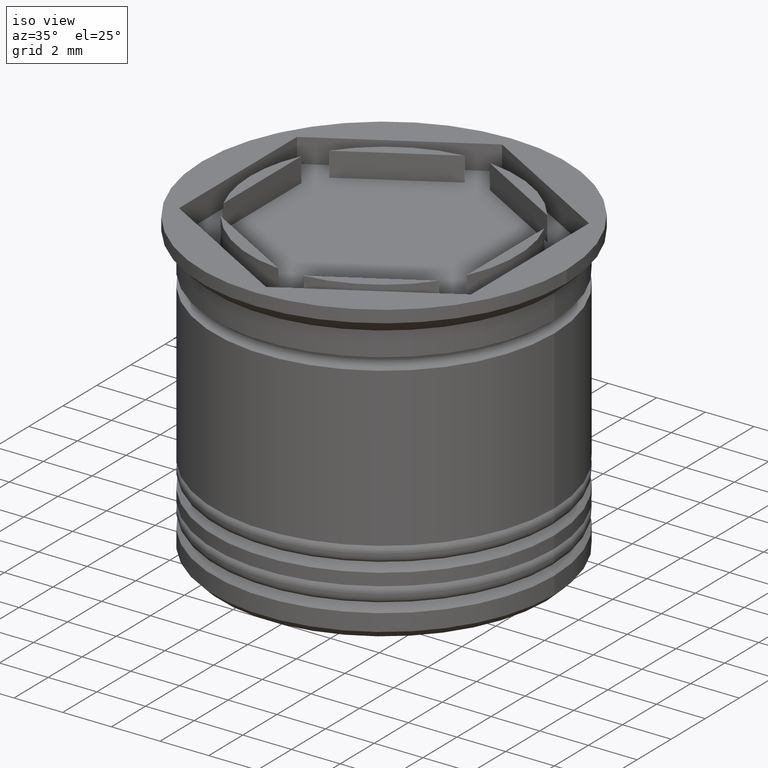
[diagram: clean part render]
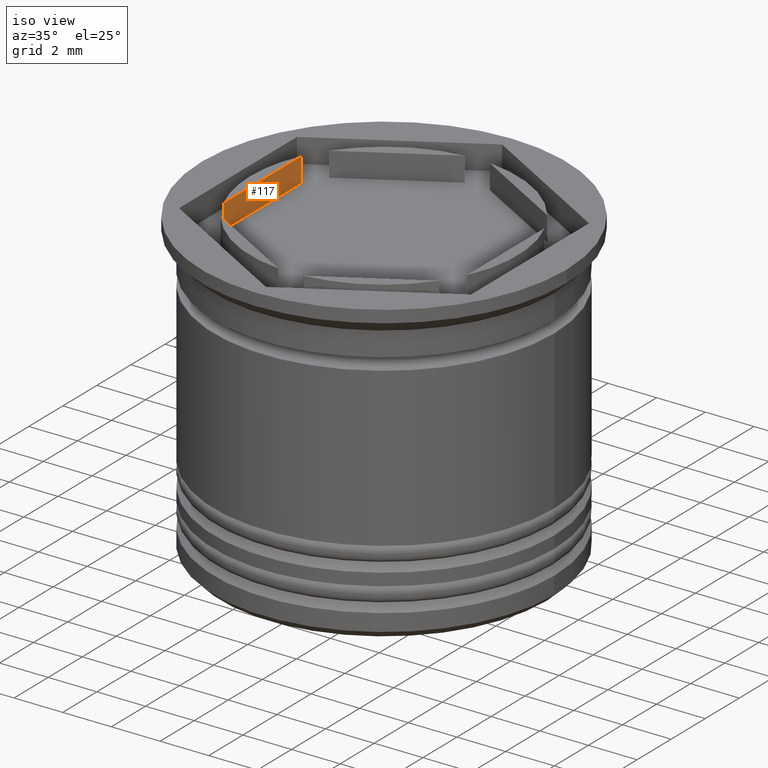
[diagram: same view with one face highlighted and labeled with its STEP entity id]
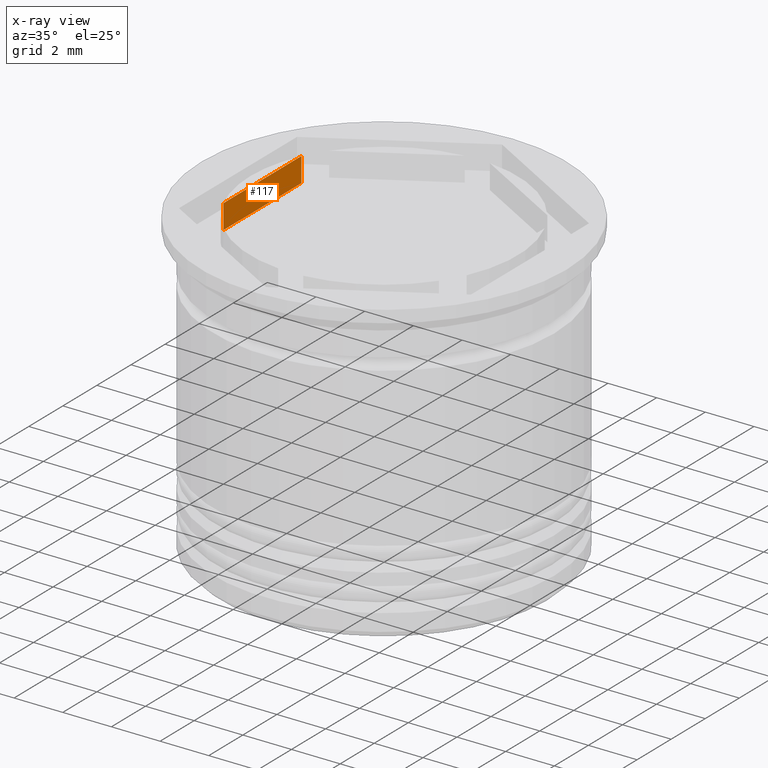
[diagram: x-ray of the same camera — body ghosted, the highlighted face saturated]
A machine part, iso view. The second image highlights one B-rep face of the part: STEP entity #117.
The next image is the same camera in x-ray: the body ghosted, the highlighted face saturated — about 0% of this face is hidden behind the body in this view.
In plain terms, the highlighted planar face has unit normal (-1, 0, -0).
Its self-contained STEP definition (entity closure, byte-faithful):
#92 = ORIENTED_EDGE ( 'NONE', *, *, #1113, .T. ) ;
#117 = ADVANCED_FACE ( 'NONE', ( #1885 ), #508, .F. ) ;
#125 = CARTESIAN_POINT ( 'NONE',  ( -5.000000000000000888, 0.000000000000000000, 0.000000000000000000 ) ) ;
#160 = LINE ( 'NONE', #125, #466 ) ;
#216 = DIRECTION ( 'NONE',  ( 0.000000000000000000, 1.000000000000000000, 0.000000000000000000 ) ) ;
#263 = ORIENTED_EDGE ( 'NONE', *, *, #535, .F. ) ;
#281 = CARTESIAN_POINT ( 'NONE',  ( -5.000000000000000888, -2.291287847477921247, -1.000000000000000888 ) ) ;
#466 = VECTOR ( 'NONE', #761, 1000.000000000000000 ) ;
#482 = CARTESIAN_POINT ( 'NONE',  ( -5.000000000000000888, -2.291287847477921247, 15.55634918610404682 ) ) ;
#508 = PLANE ( 'NONE',  #1211 ) ;
#535 = EDGE_CURVE ( 'NONE', #794, #1576, #1939, .T. ) ;
#538 = VERTEX_POINT ( 'NONE', #281 ) ;
#572 = VERTEX_POINT ( 'NONE', #853 ) ;
#666 = CARTESIAN_POINT ( 'NONE',  ( -5.000000000000000888, 2.291287847477921247, 0.000000000000000000 ) ) ;
#673 = EDGE_LOOP ( 'NONE', ( #1350, #1733, #92, #263 ) ) ;
#758 = CARTESIAN_POINT ( 'NONE',  ( -5.000000000000000888, 2.291287847477921247, -1.000000000000000888 ) ) ;
#761 = DIRECTION ( 'NONE',  ( 0.000000000000000000, -1.000000000000000000, 0.000000000000000000 ) ) ;
#794 = VERTEX_POINT ( 'NONE', #666 ) ;
#853 = CARTESIAN_POINT ( 'NONE',  ( -5.000000000000000888, -2.291287847477921247, 0.000000000000000000 ) ) ;
#858 = DIRECTION ( 'NONE',  ( -0.000000000000000000, 0.000000000000000000, 1.000000000000000000 ) ) ;
#956 = VECTOR ( 'NONE', #1800, 1000.000000000000000 ) ;
#988 = DIRECTION ( 'NONE',  ( -1.000000000000000000, 0.000000000000000000, -0.000000000000000000 ) ) ;
#1113 = EDGE_CURVE ( 'NONE', #538, #1576, #1595, .T. ) ;
#1164 = CARTESIAN_POINT ( 'NONE',  ( -5.000000000000000888, 2.291287847477921247, 15.55634918610404682 ) ) ;
#1211 = AXIS2_PLACEMENT_3D ( 'NONE', #1290, #988, #858 ) ;
#1283 = EDGE_CURVE ( 'NONE', #538, #572, #1382, .T. ) ;
#1290 = CARTESIAN_POINT ( 'NONE',  ( -5.000000000000000888, 2.886751345948129099, -16.27525231651946669 ) ) ;
#1350 = ORIENTED_EDGE ( 'NONE', *, *, #1775, .T. ) ;
#1382 = LINE ( 'NONE', #482, #1868 ) ;
#1508 = VECTOR ( 'NONE', #216, 1000.000000000000000 ) ;
#1576 = VERTEX_POINT ( 'NONE', #758 ) ;
#1584 = CARTESIAN_POINT ( 'NONE',  ( -5.000000000000000888, 2.886751345948129099, -1.000000000000000888 ) ) ;
#1595 = LINE ( 'NONE', #1584, #1508 ) ;
#1733 = ORIENTED_EDGE ( 'NONE', *, *, #1283, .F. ) ;
#1775 = EDGE_CURVE ( 'NONE', #794, #572, #160, .T. ) ;
#1800 = DIRECTION ( 'NONE',  ( -0.000000000000000000, -0.000000000000000000, -1.000000000000000000 ) ) ;
#1853 = DIRECTION ( 'NONE',  ( 0.000000000000000000, 0.000000000000000000, 1.000000000000000000 ) ) ;
#1868 = VECTOR ( 'NONE', #1853, 1000.000000000000000 ) ;
#1885 = FACE_OUTER_BOUND ( 'NONE', #673, .T. ) ;
#1939 = LINE ( 'NONE', #1164, #956 ) ;